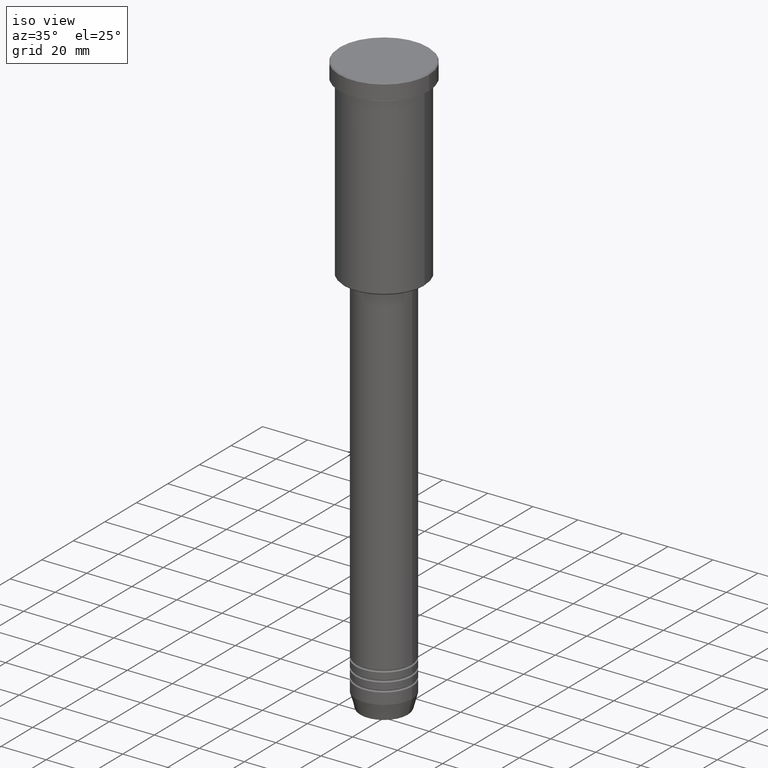
[diagram: clean part render]
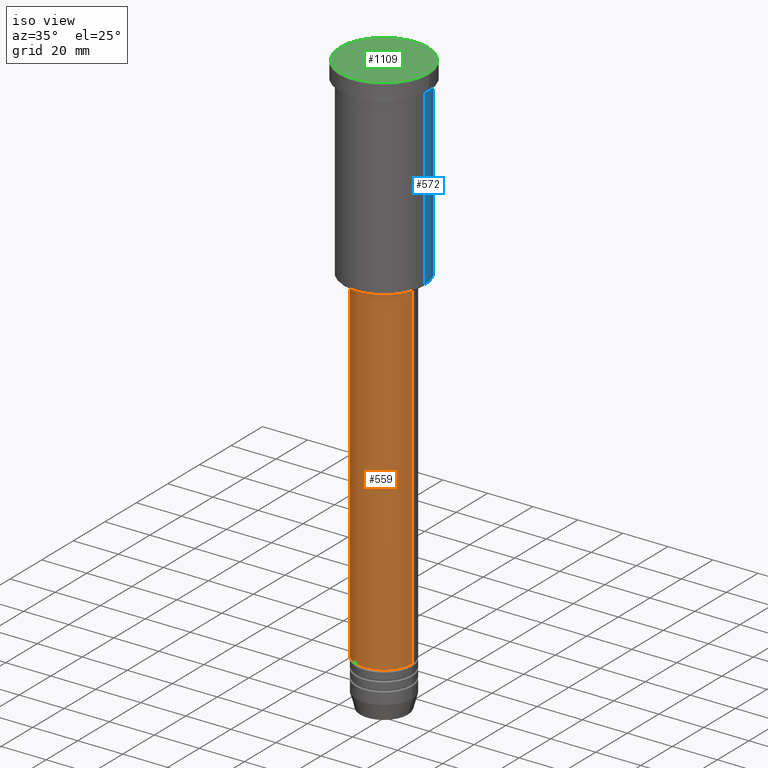
[diagram: same view with three faces highlighted in distinct colors, each labeled with its STEP entity id]
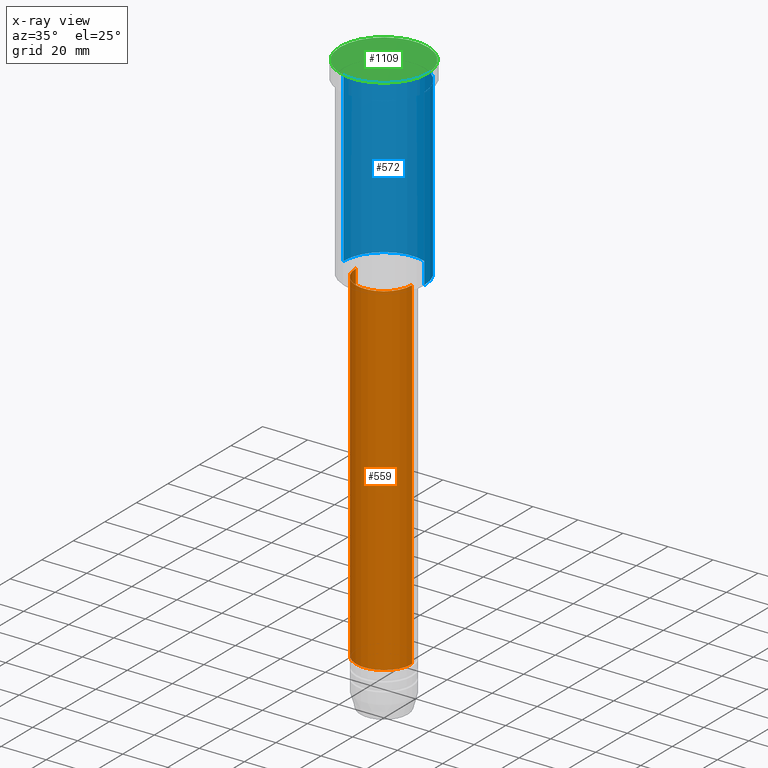
[diagram: x-ray of the same camera — body ghosted, the three highlighted faces saturated]
A machine part, iso view with three faces highlighted in distinct colors.
The next image is the same camera in x-ray (body ghosted, the three faces saturated) — at least one of them is partly hidden behind the body in this view.
Their STEP definitions:

[orange] entity #559 — the highlighted cylindrical surface (edge-blend (fillet) strip) has radius 12.5 mm, axis along (-0, -0, 1).
#2 = ORIENTED_EDGE ( 'NONE', *, *, #981, .F. ) ;
#7 = CIRCLE ( 'NONE', #588, 12.50000000000000000 ) ;
#38 = CARTESIAN_POINT ( 'NONE',  ( 12.50000000000000000, 0.000000000000000000, 0.000000000000000000 ) ) ;
#77 = CARTESIAN_POINT ( 'NONE',  ( 0.000000000000000000, 0.000000000000000000, -239.0000000000000000 ) ) ;
#130 = LINE ( 'NONE', #315, #885 ) ;
#166 = CARTESIAN_POINT ( 'NONE',  ( -12.50000000000000000, 1.530808498934191521E-15, -239.0000000000000000 ) ) ;
#172 = VERTEX_POINT ( 'NONE', #418 ) ;
#174 = ORIENTED_EDGE ( 'NONE', *, *, #207, .F. ) ;
#207 = EDGE_CURVE ( 'NONE', #805, #172, #130, .T. ) ;
#219 = EDGE_LOOP ( 'NONE', ( #174, #397, #689, #2 ) ) ;
#248 = VERTEX_POINT ( 'NONE', #401 ) ;
#297 = CIRCLE ( 'NONE', #434, 12.50000000000000000 ) ;
#310 = VERTEX_POINT ( 'NONE', #422 ) ;
#315 = CARTESIAN_POINT ( 'NONE',  ( -12.50000000000000000, 1.530808498934191521E-15, 0.000000000000000000 ) ) ;
#380 = FACE_OUTER_BOUND ( 'NONE', #219, .T. ) ;
#392 = VECTOR ( 'NONE', #473, 1000.000000000000000 ) ;
#397 = ORIENTED_EDGE ( 'NONE', *, *, #827, .T. ) ;
#401 = CARTESIAN_POINT ( 'NONE',  ( 12.50000000000000000, 0.000000000000000000, -239.0000000000000000 ) ) ;
#418 = CARTESIAN_POINT ( 'NONE',  ( -12.50000000000000000, 1.530808498934191521E-15, -87.00000000000002842 ) ) ;
#422 = CARTESIAN_POINT ( 'NONE',  ( 12.50000000000000000, 0.000000000000000000, -87.00000000000002842 ) ) ;
#434 = AXIS2_PLACEMENT_3D ( 'NONE', #1033, #664, #576 ) ;
#473 = DIRECTION ( 'NONE',  ( -0.000000000000000000, -0.000000000000000000, 1.000000000000000000 ) ) ;
#518 = EDGE_CURVE ( 'NONE', #248, #310, #1112, .T. ) ;
#559 = ADVANCED_FACE ( 'NONE', ( #380 ), #595, .T. ) ;
#571 = DIRECTION ( 'NONE',  ( -0.000000000000000000, -0.000000000000000000, 1.000000000000000000 ) ) ;
#576 = DIRECTION ( 'NONE',  ( 1.000000000000000000, 0.000000000000000000, 0.000000000000000000 ) ) ;
#588 = AXIS2_PLACEMENT_3D ( 'NONE', #77, #905, #1181 ) ;
#595 = CYLINDRICAL_SURFACE ( 'NONE', #1152, 12.50000000000000000 ) ;
#664 = DIRECTION ( 'NONE',  ( -0.000000000000000000, -0.000000000000000000, 1.000000000000000000 ) ) ;
#689 = ORIENTED_EDGE ( 'NONE', *, *, #518, .T. ) ;
#805 = VERTEX_POINT ( 'NONE', #166 ) ;
#827 = EDGE_CURVE ( 'NONE', #805, #248, #7, .T. ) ;
#885 = VECTOR ( 'NONE', #949, 1000.000000000000000 ) ;
#905 = DIRECTION ( 'NONE',  ( -0.000000000000000000, -0.000000000000000000, 1.000000000000000000 ) ) ;
#930 = DIRECTION ( 'NONE',  ( 1.000000000000000000, 0.000000000000000000, 0.000000000000000000 ) ) ;
#949 = DIRECTION ( 'NONE',  ( -0.000000000000000000, -0.000000000000000000, 1.000000000000000000 ) ) ;
#981 = EDGE_CURVE ( 'NONE', #172, #310, #297, .T. ) ;
#1018 = CARTESIAN_POINT ( 'NONE',  ( 0.000000000000000000, 0.000000000000000000, 0.000000000000000000 ) ) ;
#1033 = CARTESIAN_POINT ( 'NONE',  ( 0.000000000000000000, 0.000000000000000000, -87.00000000000002842 ) ) ;
#1112 = LINE ( 'NONE', #38, #392 ) ;
#1152 = AXIS2_PLACEMENT_3D ( 'NONE', #1018, #571, #930 ) ;
#1181 = DIRECTION ( 'NONE',  ( 1.000000000000000000, 0.000000000000000000, 0.000000000000000000 ) ) ;

[blue] entity #572 — the highlighted cylindrical surface (partial cylindrical patch) has radius 18 mm, axis along (-0, -0, 1).
#19 = DIRECTION ( 'NONE',  ( 1.000000000000000000, 0.000000000000000000, 0.000000000000000000 ) ) ;
#79 = ORIENTED_EDGE ( 'NONE', *, *, #258, .F. ) ;
#107 = CARTESIAN_POINT ( 'NONE',  ( 0.000000000000000000, 0.000000000000000000, 0.000000000000000000 ) ) ;
#125 = CARTESIAN_POINT ( 'NONE',  ( 18.00000000000000000, 0.000000000000000000, 0.000000000000000000 ) ) ;
#201 = DIRECTION ( 'NONE',  ( -1.000000000000000000, 0.000000000000000000, 0.000000000000000000 ) ) ;
#212 = FACE_OUTER_BOUND ( 'NONE', #370, .T. ) ;
#258 = EDGE_CURVE ( 'NONE', #451, #546, #662, .T. ) ;
#290 = DIRECTION ( 'NONE',  ( -0.000000000000000000, -0.000000000000000000, 1.000000000000000000 ) ) ;
#294 = CYLINDRICAL_SURFACE ( 'NONE', #1060, 18.00000000000000000 ) ;
#319 = LINE ( 'NONE', #328, #1173 ) ;
#328 = CARTESIAN_POINT ( 'NONE',  ( -18.00000000000000000, 2.204364238465235428E-15, 0.000000000000000000 ) ) ;
#347 = CARTESIAN_POINT ( 'NONE',  ( 0.000000000000000000, 0.000000000000000000, -85.49999999999992895 ) ) ;
#370 = EDGE_LOOP ( 'NONE', ( #1139, #637, #79, #1127 ) ) ;
#406 = DIRECTION ( 'NONE',  ( 1.000000000000000000, 0.000000000000000000, 0.000000000000000000 ) ) ;
#451 = VERTEX_POINT ( 'NONE', #843 ) ;
#466 = EDGE_CURVE ( 'NONE', #522, #451, #490, .T. ) ;
#490 = LINE ( 'NONE', #125, #812 ) ;
#510 = CARTESIAN_POINT ( 'NONE',  ( 0.000000000000000000, 0.000000000000000000, -7.999999999999996447 ) ) ;
#520 = DIRECTION ( 'NONE',  ( -0.000000000000000000, -0.000000000000000000, 1.000000000000000000 ) ) ;
#522 = VERTEX_POINT ( 'NONE', #935 ) ;
#530 = CIRCLE ( 'NONE', #684, 18.00000000000000000 ) ;
#546 = VERTEX_POINT ( 'NONE', #1034 ) ;
#572 = ADVANCED_FACE ( 'NONE', ( #212 ), #294, .T. ) ;
#621 = EDGE_CURVE ( 'NONE', #1016, #546, #319, .T. ) ;
#637 = ORIENTED_EDGE ( 'NONE', *, *, #621, .T. ) ;
#662 = CIRCLE ( 'NONE', #735, 18.00000000000000000 ) ;
#684 = AXIS2_PLACEMENT_3D ( 'NONE', #347, #945, #201 ) ;
#735 = AXIS2_PLACEMENT_3D ( 'NONE', #510, #871, #406 ) ;
#812 = VECTOR ( 'NONE', #290, 1000.000000000000000 ) ;
#839 = DIRECTION ( 'NONE',  ( -0.000000000000000000, -0.000000000000000000, 1.000000000000000000 ) ) ;
#843 = CARTESIAN_POINT ( 'NONE',  ( 18.00000000000000000, 0.000000000000000000, -7.999999999999996447 ) ) ;
#871 = DIRECTION ( 'NONE',  ( -0.000000000000000000, -0.000000000000000000, 1.000000000000000000 ) ) ;
#911 = EDGE_CURVE ( 'NONE', #522, #1016, #530, .T. ) ;
#935 = CARTESIAN_POINT ( 'NONE',  ( 18.00000000000000000, 0.000000000000000000, -85.49999999999992895 ) ) ;
#945 = DIRECTION ( 'NONE',  ( -0.000000000000000000, -0.000000000000000000, 1.000000000000000000 ) ) ;
#1016 = VERTEX_POINT ( 'NONE', #1030 ) ;
#1030 = CARTESIAN_POINT ( 'NONE',  ( -18.00000000000000000, 2.204364238465235428E-15, -85.49999999999992895 ) ) ;
#1034 = CARTESIAN_POINT ( 'NONE',  ( -18.00000000000000000, 2.204364238465235428E-15, -7.999999999999996447 ) ) ;
#1060 = AXIS2_PLACEMENT_3D ( 'NONE', #107, #839, #19 ) ;
#1127 = ORIENTED_EDGE ( 'NONE', *, *, #466, .F. ) ;
#1139 = ORIENTED_EDGE ( 'NONE', *, *, #911, .T. ) ;
#1173 = VECTOR ( 'NONE', #520, 1000.000000000000000 ) ;

[green] entity #1109 — the highlighted planar face has unit normal (0, -0, 1).
#63 = CIRCLE ( 'NONE', #868, 19.49999999999996092 ) ;
#90 = CARTESIAN_POINT ( 'NONE',  ( -19.49999999999996092, 0.000000000000000000, 0.000000000000000000 ) ) ;
#91 = EDGE_CURVE ( 'NONE', #909, #855, #1005, .T. ) ;
#152 = DIRECTION ( 'NONE',  ( 1.000000000000000000, 0.000000000000000000, 0.000000000000000000 ) ) ;
#190 = DIRECTION ( 'NONE',  ( -0.000000000000000000, -0.000000000000000000, 1.000000000000000000 ) ) ;
#336 = CARTESIAN_POINT ( 'NONE',  ( 0.000000000000000000, 0.000000000000000000, 0.000000000000000000 ) ) ;
#489 = AXIS2_PLACEMENT_3D ( 'NONE', #668, #190, #565 ) ;
#500 = DIRECTION ( 'NONE',  ( 0.000000000000000000, -0.000000000000000000, 1.000000000000000000 ) ) ;
#565 = DIRECTION ( 'NONE',  ( 1.000000000000000000, 0.000000000000000000, 0.000000000000000000 ) ) ;
#611 = EDGE_LOOP ( 'NONE', ( #768, #633 ) ) ;
#633 = ORIENTED_EDGE ( 'NONE', *, *, #91, .T. ) ;
#668 = CARTESIAN_POINT ( 'NONE',  ( 0.000000000000000000, 0.000000000000000000, 0.000000000000000000 ) ) ;
#677 = EDGE_CURVE ( 'NONE', #855, #909, #63, .T. ) ;
#681 = DIRECTION ( 'NONE',  ( 1.000000000000000000, 0.000000000000000000, 0.000000000000000000 ) ) ;
#768 = ORIENTED_EDGE ( 'NONE', *, *, #677, .T. ) ;
#855 = VERTEX_POINT ( 'NONE', #90 ) ;
#860 = PLANE ( 'NONE',  #967 ) ;
#868 = AXIS2_PLACEMENT_3D ( 'NONE', #336, #958, #152 ) ;
#900 = CARTESIAN_POINT ( 'NONE',  ( 19.49999999999996092, 2.418677428316020359E-15, 0.000000000000000000 ) ) ;
#909 = VERTEX_POINT ( 'NONE', #900 ) ;
#958 = DIRECTION ( 'NONE',  ( -0.000000000000000000, -0.000000000000000000, 1.000000000000000000 ) ) ;
#967 = AXIS2_PLACEMENT_3D ( 'NONE', #1057, #500, #681 ) ;
#1005 = CIRCLE ( 'NONE', #489, 19.49999999999996092 ) ;
#1057 = CARTESIAN_POINT ( 'NONE',  ( 0.000000000000000000, 0.000000000000000000, 0.000000000000000000 ) ) ;
#1109 = ADVANCED_FACE ( 'NONE', ( #1151 ), #860, .T. ) ;
#1151 = FACE_OUTER_BOUND ( 'NONE', #611, .T. ) ;